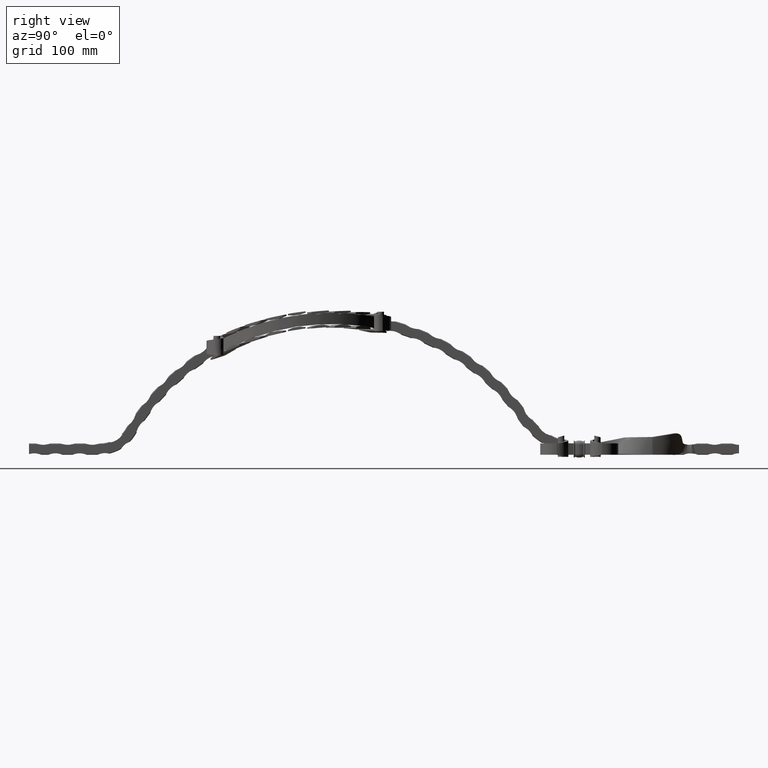
[diagram: clean part render]
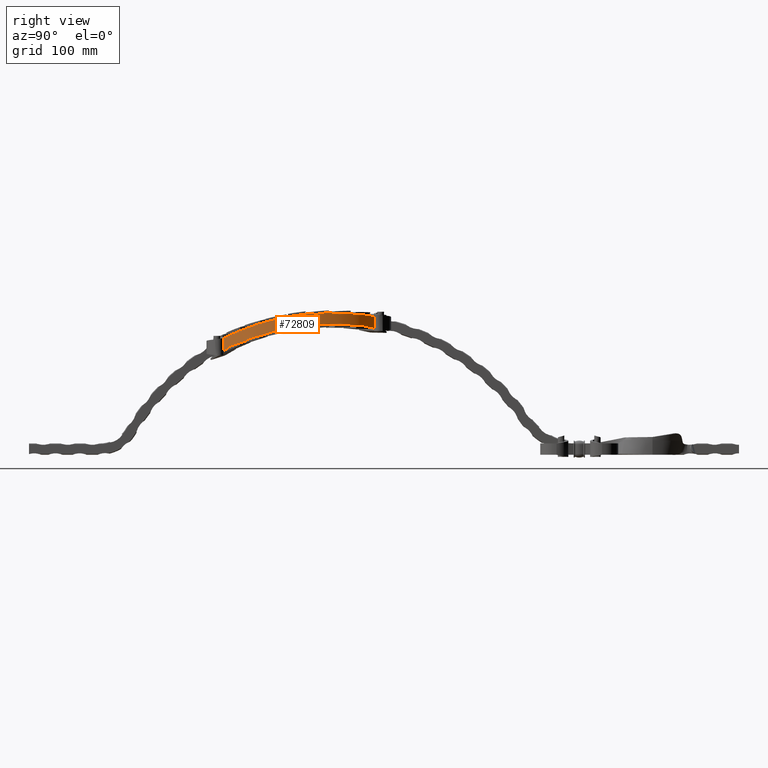
[diagram: same view with one face highlighted and labeled with its STEP entity id]
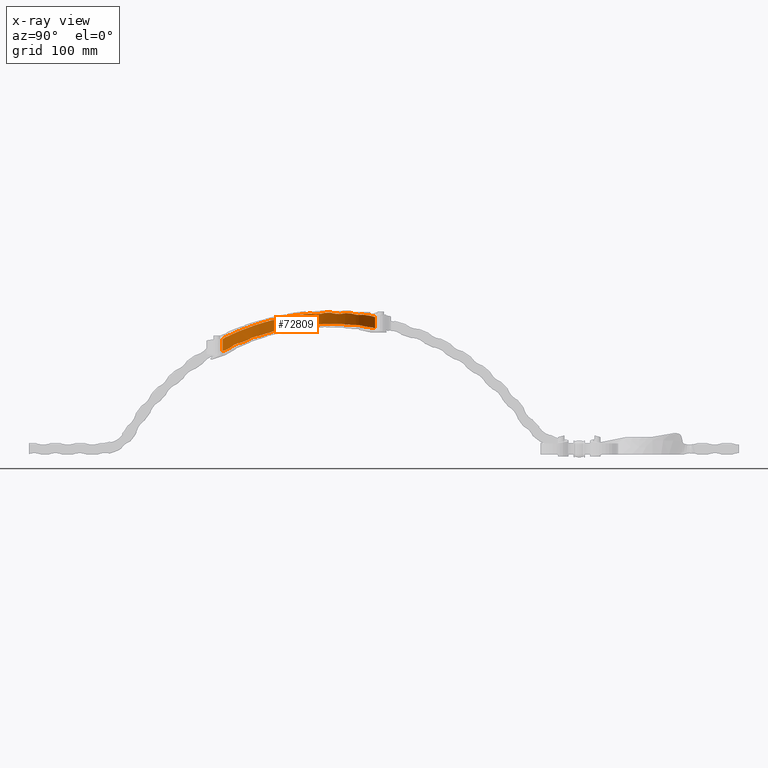
[diagram: x-ray of the same camera — body ghosted, the highlighted face saturated]
A machine part, right view. The second image highlights one B-rep face of the part: STEP entity #72809.
The next image is the same camera in x-ray: the body ghosted, the highlighted face saturated — about 0% of this face is hidden behind the body in this view.
In plain terms, the highlighted cylindrical surface (partial cylindrical patch) has radius 143.559 mm, axis along (0, 0, -1).
Its self-contained STEP definition (entity closure, byte-faithful):
#205 = ORIENTED_EDGE ( 'NONE', *, *, #28676, .F. ) ;
#645 = EDGE_CURVE ( 'NONE', #37190, #4270, #15752, .T. ) ;
#718 = CARTESIAN_POINT ( 'NONE',  ( 54.87554534618858071, 426.1626726420142859, 191.8353205002057678 ) ) ;
#1012 = CARTESIAN_POINT ( 'NONE',  ( 29.47882759754594417, 288.3869293681951831, 146.4516168255807429 ) ) ;
#1265 = CARTESIAN_POINT ( 'NONE',  ( 14.34791043303862246, 272.7304935389472575, 138.1322560593830815 ) ) ;
#1381 = CARTESIAN_POINT ( 'NONE',  ( 40.95277832755775904, 455.7149775396957807, 174.6880501319641041 ) ) ;
#1395 = ORIENTED_EDGE ( 'NONE', *, *, #47075, .F. ) ;
#1428 = CARTESIAN_POINT ( 'NONE',  ( 39.38513174063383104, 301.7707863752912090, 168.3018465052437023 ) ) ;
#1651 = CARTESIAN_POINT ( 'NONE',  ( 41.65759615597409748, 454.4972511603425573, 190.8416207604751946 ) ) ;
#1956 = CARTESIAN_POINT ( 'NONE',  ( 44.21395501683015539, 450.1319966746477235, 175.1369928298064451 ) ) ;
#2381 = ORIENTED_EDGE ( 'NONE', *, *, #25114, .F. ) ;
#2561 = CARTESIAN_POINT ( 'NONE',  ( 62.45237201290089502, 383.6976509628472058, 189.2958094194715954 ) ) ;
#3566 = CARTESIAN_POINT ( 'NONE',  ( 59.82683161147329542, 407.5900965703866063, 189.9602088058350091 ) ) ;
#3574 = CARTESIAN_POINT ( 'NONE',  ( 40.70859121640302192, 303.8892857871215369, 151.9018334575288236 ) ) ;
#3609 = ORIENTED_EDGE ( 'NONE', *, *, #37140, .F. ) ;
#3669 = CARTESIAN_POINT ( 'NONE',  ( 19.06667064921291299, 482.9255275037435240, 186.6954520056901856 ) ) ;
#4009 = CARTESIAN_POINT ( 'NONE',  ( 57.28981828392759468, 341.6751361321490776, 181.2441730957676498 ) ) ;
#4072 = CARTESIAN_POINT ( 'NONE',  ( 58.46361224457211847, 413.8517798382418391, 190.8896441585517891 ) ) ;
#4270 = VERTEX_POINT ( 'NONE', #7954 ) ;
#4627 = CARTESIAN_POINT ( 'NONE',  ( 50.08939826349006097, 438.3951654641858227, 176.0711084106085877 ) ) ;
#4713 = CARTESIAN_POINT ( 'NONE',  ( 56.60986378987634282, 339.3001817461642418, 164.0391281674017705 ) ) ;
#5352 = CARTESIAN_POINT ( 'NONE',  ( 32.59762242860480796, 467.7084633033514365, 174.0092458802796784 ) ) ;
#5401 = CARTESIAN_POINT ( 'NONE',  ( 53.71228226666797667, 429.4883906259616424, 190.7415643981258597 ) ) ;
#5702 = B_SPLINE_CURVE_WITH_KNOTS ( 'NONE', 3,
 ( #61126, #3669, #55312, #39139 ),
 .UNSPECIFIED., .F., .F.,
 ( 4, 4 ),
 ( 0.002169088220663665297, 0.01184605037619576758 ),
 .UNSPECIFIED. ) ;
#5845 = VERTEX_POINT ( 'NONE', #19855 ) ;
#5892 = CARTESIAN_POINT ( 'NONE',  ( 62.18734767816498987, 370.5305432202886777, 171.1286347313373426 ) ) ;
#6054 = CARTESIAN_POINT ( 'NONE',  ( 51.00116425371072637, 323.7033852352437293, 159.2497916353360097 ) ) ;
#6183 = EDGE_CURVE ( 'NONE', #25025, #13653, #35979, .T. ) ;
#6334 = B_SPLINE_CURVE_WITH_KNOTS ( 'NONE', 3,
 ( #71408, #14937, #60449, #60196, #54701, #48525 ),
 .UNSPECIFIED., .F., .F.,
 ( 4, 2, 4 ),
 ( 0.2297963460747055320, 0.2352694650614376715, 0.2407425840481698109 ),
 .UNSPECIFIED. ) ;
#6482 = CARTESIAN_POINT ( 'NONE',  ( 37.54212556312231897, 299.1113125400761419, 149.8861826913160087 ) ) ;
#6485 = VERTEX_POINT ( 'NONE', #72470 ) ;
#6615 = ORIENTED_EDGE ( 'NONE', *, *, #17534, .T. ) ;
#6805 = EDGE_CURVE ( 'NONE', #24343, #10796, #7936, .T. ) ;
#6886 = CARTESIAN_POINT ( 'NONE',  ( 37.06107768926196400, 298.3029745367472287, 166.9091673387005983 ) ) ;
#7007 = EDGE_CURVE ( 'NONE', #37190, #25721, #18610, .T. ) ;
#7132 = CARTESIAN_POINT ( 'NONE',  ( 18.05829399836335725, 276.1492195848916253, 156.9219191592546565 ) ) ;
#7210 = DIRECTION ( 'NONE',  ( 0.000000000000000000, 0.000000000000000000, 1.000000000000000000 ) ) ;
#7402 = CARTESIAN_POINT ( 'NONE',  ( 54.88104647583427464, 426.1464703266730680, 191.6707689010672198 ) ) ;
#7673 = CARTESIAN_POINT ( 'NONE',  ( 51.00116425371072637, 323.7033852352437293, 159.2497916353360097 ) ) ;
#7713 = CARTESIAN_POINT ( 'NONE',  ( 59.02621204198550231, 411.3898497679593902, 175.6484352663472350 ) ) ;
#7936 = B_SPLINE_CURVE_WITH_KNOTS ( 'NONE', 3,
 ( #25826, #42992, #26839, #37493, #65626, #72114, #32551, #37758 ),
 .UNSPECIFIED., .F., .F.,
 ( 4, 2, 2, 4 ),
 ( 0.1602699814525353483, 0.1650662447777556940, 0.1698625081029760397, 0.1794550347534169255 ),
 .UNSPECIFIED. ) ;
#7954 = CARTESIAN_POINT ( 'NONE',  ( 18.05829399836335725, 276.1492195848916253, 156.9219191592546565 ) ) ;
#8235 = DIRECTION ( 'NONE',  ( 0.000000000000000000, 0.000000000000000000, -1.000000000000000000 ) ) ;
#8279 = CARTESIAN_POINT ( 'NONE',  ( 46.50744329074341010, 445.8679610375921811, 175.4213705812136652 ) ) ;
#8328 = ORIENTED_EDGE ( 'NONE', *, *, #11582, .F. ) ;
#8444 = VERTEX_POINT ( 'NONE', #55724 ) ;
#8521 = VERTEX_POINT ( 'NONE', #12445 ) ;
#8903 = B_SPLINE_CURVE_WITH_KNOTS ( 'NONE', 3,
 ( #49603, #55299, #21222, #21484, #50081, #61030, #66749, #32681 ),
 .UNSPECIFIED., .F., .F.,
 ( 4, 2, 2, 4 ),
 ( 0.1303568117738035659, 0.1353611937704127799, 0.1403655757670220217, 0.1503743397602404497 ),
 .UNSPECIFIED. ) ;
#9193 = CARTESIAN_POINT ( 'NONE',  ( 62.46523630083655121, 383.1591301786469330, 173.0886959346169931 ) ) ;
#9195 = CARTESIAN_POINT ( 'NONE',  ( 59.40298302251355267, 350.3365046323355045, 182.8325951925343986 ) ) ;
#9746 = CARTESIAN_POINT ( 'NONE',  ( 30.62214433222455412, 470.2027403279753912, 189.1726477880944799 ) ) ;
#9771 = CARTESIAN_POINT ( 'NONE',  ( 62.34788906482121718, 387.7528021373078104, 189.8106166385742881 ) ) ;
#10293 = CARTESIAN_POINT ( 'NONE',  ( 47.96586044313103514, 442.9640980102969365, 175.7929633856486760 ) ) ;
#10324 = EDGE_LOOP ( 'NONE', ( #13165, #36886, #43380, #49163, #61672, #23407, #6615, #205, #59044, #27516, #34184, #28157, #14956, #10484, #17453, #29588, #2381, #56792, #48657, #45394, #63754, #1395, #3609, #67064, #38330, #14015, #61750, #46507, #52796, #53106, #41343, #25090, #20912, #68924, #8328, #22379 ) ) ;
#10441 = CARTESIAN_POINT ( 'NONE',  ( 16.88388185722090284, 275.0283321948774642, 156.0803188687901581 ) ) ;
#10484 = ORIENTED_EDGE ( 'NONE', *, *, #36917, .T. ) ;
#10539 = CARTESIAN_POINT ( 'NONE',  ( 15.69159786428269499, 273.9255919046373151, 138.5951246219623840 ) ) ;
#10796 = VERTEX_POINT ( 'NONE', #46715 ) ;
#11019 = EDGE_CURVE ( 'NONE', #6485, #25721, #60347, .T. ) ;
#11247 = CARTESIAN_POINT ( 'NONE',  ( 47.59607216431081156, 316.3048589952529142, 173.6361974993323258 ) ) ;
#11250 = CARTESIAN_POINT ( 'NONE',  ( 34.73661609628569380, 464.8890494080042117, 174.3618560449460801 ) ) ;
#11292 = CARTESIAN_POINT ( 'NONE',  ( 62.49964343868131067, 378.8820028189642812, 172.9470935432360079 ) ) ;
#11521 = B_SPLINE_CURVE_WITH_KNOTS ( 'NONE', 3,
 ( #15894, #61389, #73100, #55669, #27335, #67124 ),
 .UNSPECIFIED., .F., .F.,
 ( 4, 2, 4 ),
 ( 0.06430661875022439244, 0.07687153130712975901, 0.08943644386403512558 ),
 .UNSPECIFIED. ) ;
#11582 = EDGE_CURVE ( 'NONE', #32193, #23864, #71814, .T. ) ;
#11661 = B_SPLINE_CURVE_WITH_KNOTS ( 'NONE', 3,
 ( #11247, #56993, #22900, #39082, #33372, #33613 ),
 .UNSPECIFIED., .F., .F.,
 ( 4, 2, 4 ),
 ( 0.009818881736506706107, 0.01423579173994967209, 0.01865270174339263634 ),
 .UNSPECIFIED. ) ;
#12095 = CARTESIAN_POINT ( 'NONE',  ( 20.31827285201796229, 481.6970778917969369, 171.2617865729183109 ) ) ;
#12445 = CARTESIAN_POINT ( 'NONE',  ( 57.57070921096910610, 417.2960347366930591, 191.8760587568100675 ) ) ;
#12559 = DIRECTION ( 'NONE',  ( -0.000000000000000000, -0.000000000000000000, -1.000000000000000000 ) ) ;
#12567 = CARTESIAN_POINT ( 'NONE',  ( 33.33735769546461114, 293.2413064832605869, 164.7827508771324005 ) ) ;
#12895 = CARTESIAN_POINT ( 'NONE',  ( 59.63926292887261837, 408.5258566783885499, 175.5618236116010848 ) ) ;
#13098 = CARTESIAN_POINT ( 'NONE',  ( 44.87515652727775972, 311.0353332048717334, 155.4085991743909005 ) ) ;
#13165 = ORIENTED_EDGE ( 'NONE', *, *, #32466, .F. ) ;
#13334 = CARTESIAN_POINT ( 'NONE',  ( 47.69347756386604686, 316.4981435052954453, 157.7636815987970351 ) ) ;
#13452 = CARTESIAN_POINT ( 'NONE',  ( 62.49633357706491665, 378.5324169334996327, 188.0957345827903282 ) ) ;
#13653 = VERTEX_POINT ( 'NONE', #20941 ) ;
#13953 = CARTESIAN_POINT ( 'NONE',  ( 14.34791043303860647, 487.2695064610527425, 170.3703116351568383 ) ) ;
#14015 = ORIENTED_EDGE ( 'NONE', *, *, #23094, .F. ) ;
#14135 = CARTESIAN_POINT ( 'NONE',  ( 41.65759615597409748, 454.4972511603425573, 190.8416207604751946 ) ) ;
#14430 = CARTESIAN_POINT ( 'NONE',  ( 61.62373968079749886, 395.8373921338410355, 190.6156773046816113 ) ) ;
#14873 = CARTESIAN_POINT ( 'NONE',  ( 59.83874039908802445, 352.4647336632399970, 183.5002349088146332 ) ) ;
#14937 = CARTESIAN_POINT ( 'NONE',  ( 24.40410566277869719, 282.5845831677842170, 142.2581007955531902 ) ) ;
#14956 = ORIENTED_EDGE ( 'NONE', *, *, #68536, .F. ) ;
#15129 = CARTESIAN_POINT ( 'NONE',  ( 59.91859427334846799, 407.1017801941845846, 175.4198779886886825 ) ) ;
#15173 = EDGE_CURVE ( 'NONE', #66085, #67389, #34677, .T. ) ;
#15198 = CARTESIAN_POINT ( 'NONE',  ( 34.59285521565004728, 465.0677543228616173, 188.7376087734243981 ) ) ;
#15384 = CARTESIAN_POINT ( 'NONE',  ( 58.43556356712592503, 346.0088390348406620, 181.7533518436698614 ) ) ;
#15596 = B_SPLINE_CURVE_WITH_KNOTS ( 'NONE', 3,
 ( #70661, #24613, #29842, #13452, #69930, #70173, #47303, #2561 ),
 .UNSPECIFIED., .F., .F.,
 ( 4, 2, 2, 4 ),
 ( 0.006893394492022431215, 0.01319764996676441732, 0.01634977770413532927, 0.01950190544150624122 ),
 .UNSPECIFIED. ) ;
#15697 = CARTESIAN_POINT ( 'NONE',  ( 15.59457958163620361, 486.1475864854437532, 170.4501924052195818 ) ) ;
#15707 = CARTESIAN_POINT ( 'NONE',  ( 54.96462544228585045, 334.0174344528228971, 162.5250055812642813 ) ) ;
#15752 = B_SPLINE_CURVE_WITH_KNOTS ( 'NONE', 3,
 ( #50196, #16621, #10441, #44761 ),
 .UNSPECIFIED., .F., .F.,
 ( 4, 4 ),
 ( 1.214306433183764812E-17, 0.005483994406393619993 ),
 .UNSPECIFIED. ) ;
#15851 = CARTESIAN_POINT ( 'NONE',  ( 54.87004131991761113, 426.1788739735829381, 191.9998747198900162 ) ) ;
#15894 = CARTESIAN_POINT ( 'NONE',  ( 51.40917903308823611, 435.3297119917191367, 175.8787205969119043 ) ) ;
#15980 = CARTESIAN_POINT ( 'NONE',  ( 50.76166587379518802, 436.8613156676528320, 176.0179375212815103 ) ) ;
#16554 = CARTESIAN_POINT ( 'NONE',  ( 59.31540602297936715, 349.9122618024645703, 166.9763740988582015 ) ) ;
#16621 = CARTESIAN_POINT ( 'NONE',  ( 15.64924556359871133, 273.8879230508892988, 155.3418064462438792 ) ) ;
#16757 = CARTESIAN_POINT ( 'NONE',  ( 51.76386311095444626, 434.5027665396510770, 190.1856157129458040 ) ) ;
#16862 = CYLINDRICAL_SURFACE ( 'NONE', #52028, 143.5594059405938481 ) ;
#17000 = CARTESIAN_POINT ( 'NONE',  ( 62.32064982348229165, 372.5470368810476316, 171.8188139479954941 ) ) ;
#17278 = CARTESIAN_POINT ( 'NONE',  ( 46.45890614627136728, 445.9422710901972664, 191.4413612988598743 ) ) ;
#17453 = ORIENTED_EDGE ( 'NONE', *, *, #26704, .F. ) ;
#17501 = CARTESIAN_POINT ( 'NONE',  ( 48.06098984276402319, 442.7733859201455289, 190.6979960321487226 ) ) ;
#17534 = EDGE_CURVE ( 'NONE', #73494, #37655, #73107, .T. ) ;
#17719 = B_SPLINE_CURVE_WITH_KNOTS ( 'NONE', 3,
 ( #50949, #51930, #56687, #29286 ),
 .UNSPECIFIED., .F., .F.,
 ( 4, 4 ),
 ( 0.1296726685259065870, 0.1467279451520990541 ),
 .UNSPECIFIED. ) ;
#17794 = CARTESIAN_POINT ( 'NONE',  ( 29.00760398250084293, 472.1659175650391944, 172.7577334862172904 ) ) ;
#17862 = EDGE_CURVE ( 'NONE', #36934, #40876, #26858, .T. ) ;
#17984 = CARTESIAN_POINT ( 'NONE',  ( 29.00760398250084293, 472.1659175650391944, 172.7577334862172904 ) ) ;
#18092 = CARTESIAN_POINT ( 'NONE',  ( 35.57248972937951237, 296.2790516487965533, 149.5307504969440799 ) ) ;
#18610 = LINE ( 'NONE', #51351, #47134 ) ;
#18742 = CARTESIAN_POINT ( 'NONE',  ( 32.05576767998080356, 291.5769588164343418, 164.0674317124399693 ) ) ;
#18826 = B_SPLINE_CURVE_WITH_KNOTS ( 'NONE', 3,
 ( #7713, #64601, #30004, #12895, #46743, #24540 ),
 .UNSPECIFIED., .F., .F.,
 ( 4, 2, 4 ),
 ( 0.01005810265778764138, 0.01223143658782506818, 0.01440477051786249497 ),
 .UNSPECIFIED. ) ;
#19005 = CARTESIAN_POINT ( 'NONE',  ( 27.67169014277537897, 473.8557479493460960, 188.6983198376819075 ) ) ;
#19031 = CARTESIAN_POINT ( 'NONE',  ( 43.62758517053000418, 308.8490528406631483, 153.8686827294681905 ) ) ;
#19276 = CARTESIAN_POINT ( 'NONE',  ( 48.93322435674932080, 319.0759564092657001, 158.5089468050307175 ) ) ;
#19525 = CARTESIAN_POINT ( 'NONE',  ( 49.84142774482364757, 321.0393799669326995, 158.9375204718081704 ) ) ;
#19614 = CARTESIAN_POINT ( 'NONE',  ( -81.05940594059381965, 380.0000000000000000, 192.0000000000000000 ) ) ;
#19799 = CARTESIAN_POINT ( 'NONE',  ( 62.22937744039836616, 371.1893478555043089, 187.4707337984536935 ) ) ;
#19855 = CARTESIAN_POINT ( 'NONE',  ( 14.34791043303862423, 487.2695064610527425, 185.8250401428522878 ) ) ;
#20027 = VERTEX_POINT ( 'NONE', #57790 ) ;
#20154 = CARTESIAN_POINT ( 'NONE',  ( 59.02621204198550231, 411.3898497679593902, 175.6484352663472350 ) ) ;
#20298 = VERTEX_POINT ( 'NONE', #57224 ) ;
#20638 = CARTESIAN_POINT ( 'NONE',  ( 60.64458500710597377, 403.0786938488144528, 189.8113021230724655 ) ) ;
#20688 = EDGE_CURVE ( 'NONE', #73494, #33432, #50924, .T. ) ;
#20750 = CARTESIAN_POINT ( 'NONE',  ( 54.87004131991761113, 426.1788739735829381, 191.9998747198900162 ) ) ;
#20756 = CARTESIAN_POINT ( 'NONE',  ( 37.42201921055066549, 461.0645109044022547, 174.1457439624590506 ) ) ;
#20912 = ORIENTED_EDGE ( 'NONE', *, *, #17862, .F. ) ;
#20941 = CARTESIAN_POINT ( 'NONE',  ( 43.62758517053000418, 308.8490528406631483, 153.8686827294681905 ) ) ;
#21166 = CARTESIAN_POINT ( 'NONE',  ( 56.60986378987634282, 339.3001817461642418, 164.0391281674017705 ) ) ;
#21222 = CARTESIAN_POINT ( 'NONE',  ( 61.93911483888010139, 367.2138769244062928, 170.5332076142667859 ) ) ;
#21382 = CARTESIAN_POINT ( 'NONE',  ( 54.88654470867890467, 426.1302670280772986, 191.5062199277342074 ) ) ;
#21484 = CARTESIAN_POINT ( 'NONE',  ( 61.60500424326244939, 363.9087615357215668, 169.8998405160924108 ) ) ;
#21538 = CARTESIAN_POINT ( 'NONE',  ( 57.66203905747453717, 342.9905860556496009, 165.5397031563014991 ) ) ;
#22379 = ORIENTED_EDGE ( 'NONE', *, *, #33131, .F. ) ;
#22452 = CARTESIAN_POINT ( 'NONE',  ( 50.70273394320315674, 436.9987619098766345, 190.1755220042986991 ) ) ;
#22900 = CARTESIAN_POINT ( 'NONE',  ( 48.85773271750728242, 318.9026519881106196, 174.2670032064703207 ) ) ;
#23094 = EDGE_CURVE ( 'NONE', #38906, #25025, #31255, .T. ) ;
#23155 = CARTESIAN_POINT ( 'NONE',  ( 37.42201921055066549, 461.0645109044022547, 174.1457439624590506 ) ) ;
#23407 = ORIENTED_EDGE ( 'NONE', *, *, #20688, .F. ) ;
#23529 =( BOUNDED_CURVE ( )  B_SPLINE_CURVE ( 3, ( #34701, #718, #7402, #36155 ),
 .UNSPECIFIED., .F., .F. ) 
 B_SPLINE_CURVE_WITH_KNOTS ( ( 4, 4 ),
 ( 4.801140535740446857, 4.801498103548063945 ),
 .UNSPECIFIED. ) 
 CURVE ( )  GEOMETRIC_REPRESENTATION_ITEM ( )  RATIONAL_B_SPLINE_CURVE ( ( 1.000000000000000000, 0.9999999893454385447, 0.9999999893454385447, 1.000000000000000000 ) ) 
 REPRESENTATION_ITEM ( '' )  );
#23544 = CARTESIAN_POINT ( 'NONE',  ( 36.56557697817488162, 297.6794663648006463, 149.7679574166719760 ) ) ;
#23705 = CARTESIAN_POINT ( 'NONE',  ( 24.78825077021826218, 477.0360911101547003, 172.0339954060800096 ) ) ;
#23768 = CARTESIAN_POINT ( 'NONE',  ( 26.52050346601048503, 284.9321463166491526, 143.9193943335649806 ) ) ;
#23864 = VERTEX_POINT ( 'NONE', #55916 ) ;
#24154 = EDGE_CURVE ( 'NONE', #46863, #5845, #50233, .T. ) ;
#24343 = VERTEX_POINT ( 'NONE', #55362 ) ;
#24408 = CARTESIAN_POINT ( 'NONE',  ( 15.59457958163620361, 486.1475864854437532, 170.4501924052195818 ) ) ;
#24433 = CARTESIAN_POINT ( 'NONE',  ( 43.33019978744632539, 451.6883181753399867, 191.0655146353440159 ) ) ;
#24540 = CARTESIAN_POINT ( 'NONE',  ( 59.91859427334846799, 407.1017801941845846, 175.4198779886886825 ) ) ;
#24613 = CARTESIAN_POINT ( 'NONE',  ( 62.35835267764853995, 373.2868889374546484, 187.4822822513548317 ) ) ;
#24880 = CARTESIAN_POINT ( 'NONE',  ( 43.41362908223380401, 451.5428092903025572, 175.0303532673120515 ) ) ;
#24994 = CARTESIAN_POINT ( 'NONE',  ( 14.34791043303862068, 272.7304935389472575, 154.7116791928000907 ) ) ;
#25025 = VERTEX_POINT ( 'NONE', #56738 ) ;
#25090 = ORIENTED_EDGE ( 'NONE', *, *, #60460, .F. ) ;
#25114 = EDGE_CURVE ( 'NONE', #55614, #10796, #11661, .T. ) ;
#25614 = CARTESIAN_POINT ( 'NONE',  ( 60.22618280294690862, 354.5503350236729716, 184.2976740468933201 ) ) ;
#25721 = VERTEX_POINT ( 'NONE', #1265 ) ;
#25826 = CARTESIAN_POINT ( 'NONE',  ( 57.28981828392759468, 341.6751361321490776, 181.2441730957676498 ) ) ;
#26113 = CARTESIAN_POINT ( 'NONE',  ( 61.42246861514157530, 397.6506950139909691, 190.2743512189506987 ) ) ;
#26309 = CARTESIAN_POINT ( 'NONE',  ( 62.12150756768604509, 391.1639372718573782, 174.0933043746703675 ) ) ;
#26370 = CARTESIAN_POINT ( 'NONE',  ( 59.27063896610513183, 410.2923755165073203, 190.2580365120693102 ) ) ;
#26492 = CARTESIAN_POINT ( 'NONE',  ( 62.45237201290089502, 383.6976509628472058, 189.2958094194715954 ) ) ;
#26683 = CARTESIAN_POINT ( 'NONE',  ( 51.40917903308823611, 435.3297119917191367, 175.8787205969119043 ) ) ;
#26704 = EDGE_CURVE ( 'NONE', #24343, #48763, #33718, .T. ) ;
#26823 = CARTESIAN_POINT ( 'NONE',  ( 60.30021660343268053, 405.1166577207982300, 175.3008570081075561 ) ) ;
#26839 = CARTESIAN_POINT ( 'NONE',  ( 56.43256934600512409, 338.6756900887263555, 180.4598196511498713 ) ) ;
#26858 = B_SPLINE_CURVE_WITH_KNOTS ( 'NONE', 3,
 ( #72949, #10293, #61002, #37873, #4627, #15980, #44362, #26683 ),
 .UNSPECIFIED., .F., .F.,
 ( 4, 2, 2, 4 ),
 ( 0.006688337887424819321, 0.01168843679203012201, 0.01418848624433277292, 0.01668853569663542383 ),
 .UNSPECIFIED. ) ;
#26905 = CARTESIAN_POINT ( 'NONE',  ( 62.45237201290089502, 383.6976509628472058, 189.2958094194715954 ) ) ;
#27010 = VERTEX_POINT ( 'NONE', #31721 ) ;
#27335 = CARTESIAN_POINT ( 'NONE',  ( 58.10340953597028602, 415.5081032889738708, 175.8405505222938245 ) ) ;
#27516 = ORIENTED_EDGE ( 'NONE', *, *, #70487, .T. ) ;
#27675 = B_SPLINE_CURVE_WITH_KNOTS ( 'NONE', 3,
 ( #49526, #43809, #37815, #43049, #15198, #71650, #54445, #9746 ),
 .UNSPECIFIED., .F., .F.,
 ( 4, 2, 2, 4 ),
 ( 6.938893903907227607E-18, 0.009662400665569642610, 0.01449360099835440320, 0.01932480133113916379 ),
 .UNSPECIFIED. ) ;
#28143 = CARTESIAN_POINT ( 'NONE',  ( 36.10638133040166764, 462.9874072407127983, 174.3650815394068445 ) ) ;
#28157 = ORIENTED_EDGE ( 'NONE', *, *, #49789, .T. ) ;
#28190 = CARTESIAN_POINT ( 'NONE',  ( 50.34023182524559559, 437.8296170498388165, 190.1991272164569011 ) ) ;
#28676 = EDGE_CURVE ( 'NONE', #39620, #37655, #49916, .T. ) ;
#28691 = CARTESIAN_POINT ( 'NONE',  ( 49.21640939510479029, 440.3185946530068122, 190.3804950708166643 ) ) ;
#29108 = CARTESIAN_POINT ( 'NONE',  ( 31.88046208560841421, 468.6296367411977712, 173.8347983561004924 ) ) ;
#29265 = CARTESIAN_POINT ( 'NONE',  ( 34.06019835123863970, 294.2241114688796415, 148.9961483077809135 ) ) ;
#29286 = CARTESIAN_POINT ( 'NONE',  ( 60.22618280294690862, 354.5503350236729716, 184.2976740468933201 ) ) ;
#29385 = EDGE_CURVE ( 'NONE', #13653, #60577, #56607, .T. ) ;
#29588 = ORIENTED_EDGE ( 'NONE', *, *, #6805, .T. ) ;
#29673 = CARTESIAN_POINT ( 'NONE',  ( 41.65759615597409748, 454.4972511603425573, 190.8416207604751946 ) ) ;
#29676 = CARTESIAN_POINT ( 'NONE',  ( 23.95706808378280783, 282.0295059090759651, 159.7736643231009168 ) ) ;
#29842 = CARTESIAN_POINT ( 'NONE',  ( 62.44114515679870436, 375.3848806329746139, 187.6381910154496495 ) ) ;
#30004 = CARTESIAN_POINT ( 'NONE',  ( 59.34074878575106027, 409.9605819985886228, 175.6384090609617772 ) ) ;
#30336 = EDGE_CURVE ( 'NONE', #20027, #8444, #47613, .T. ) ;
#30388 = CARTESIAN_POINT ( 'NONE',  ( 46.45890614627136728, 445.9422710901972664, 191.4413612988598743 ) ) ;
#30710 = CARTESIAN_POINT ( 'NONE',  ( 48.00482505966658664, 317.1331531238609500, 157.9706804530582644 ) ) ;
#31121 = VERTEX_POINT ( 'NONE', #20750 ) ;
#31255 = B_SPLINE_CURVE_WITH_KNOTS ( 'NONE', 3,
 ( #21166, #38335, #15707, #73164, #45301, #6054 ),
 .UNSPECIFIED., .F., .F.,
 ( 4, 2, 4 ),
 ( 0.1627013867355368293, 0.1712849266523855385, 0.1798684665692342755 ),
 .UNSPECIFIED. ) ;
#31620 = VERTEX_POINT ( 'NONE', #20154 ) ;
#31721 = CARTESIAN_POINT ( 'NONE',  ( 59.52365011143791662, 350.9189514444971678, 167.0576045229779822 ) ) ;
#31833 = CARTESIAN_POINT ( 'NONE',  ( 59.64737240359760051, 408.4912626246683089, 190.0403525608301152 ) ) ;
#32085 = CARTESIAN_POINT ( 'NONE',  ( 58.02943938273350710, 415.5909254138343840, 191.3283879010526221 ) ) ;
#32193 = VERTEX_POINT ( 'NONE', #17984 ) ;
#32427 = B_SPLINE_CURVE_WITH_KNOTS ( 'NONE', 3,
 ( #57804, #51846, #12095, #23705, #63536, #17794 ),
 .UNSPECIFIED., .F., .F.,
 ( 4, 2, 4 ),
 ( 0.001669392018709382579, 0.01138989547989981838, 0.02111039894109025331 ),
 .UNSPECIFIED. ) ;
#32466 = EDGE_CURVE ( 'NONE', #46863, #43349, #70006, .T. ) ;
#32551 = CARTESIAN_POINT ( 'NONE',  ( 52.34881859435813567, 326.8863089202431524, 177.0857543529626810 ) ) ;
#32573 = EDGE_CURVE ( 'NONE', #23864, #36934, #57582, .T. ) ;
#32681 = CARTESIAN_POINT ( 'NONE',  ( 59.52365011143791662, 350.9189514444971678, 167.0576045229779822 ) ) ;
#33131 = EDGE_CURVE ( 'NONE', #43349, #32193, #32427, .T. ) ;
#33238 = EDGE_CURVE ( 'NONE', #55614, #4270, #44875, .T. ) ;
#33261 = CARTESIAN_POINT ( 'NONE',  ( 60.03952811457124739, 353.5141085128944383, 183.8791140369678772 ) ) ;
#33372 = CARTESIAN_POINT ( 'NONE',  ( 50.61321116125144215, 322.7855175565780428, 175.6219668716505566 ) ) ;
#33432 = VERTEX_POINT ( 'NONE', #53361 ) ;
#33613 = CARTESIAN_POINT ( 'NONE',  ( 51.14650075962612874, 324.0455429157877916, 176.1871994632143981 ) ) ;
#33718 = B_SPLINE_CURVE_WITH_KNOTS ( 'NONE', 3,
 ( #4009, #43750, #15384, #72606, #43234, #9195, #48961, #14873, #33261, #67834 ),
 .UNSPECIFIED., .F., .F.,
 ( 4, 2, 2, 2, 4 ),
 ( 0.007172250002802671096, 0.01393493339057642888, 0.01562560423751987657, 0.01731627508446332772, 0.02069761677835025085 ),
 .UNSPECIFIED. ) ;
#33949 = CARTESIAN_POINT ( 'NONE',  ( 58.39613230429192470, 345.9160482826122234, 166.2904860508635920 ) ) ;
#34184 = ORIENTED_EDGE ( 'NONE', *, *, #47083, .F. ) ;
#34371 = B_SPLINE_CURVE_WITH_KNOTS ( 'NONE', 3,
 ( #14430, #26113, #43296, #20638, #49024, #3566, #31833, #26370, #66182, #4072, #32085, #65427 ),
 .UNSPECIFIED., .F., .F.,
 ( 4, 2, 2, 2, 2, 4 ),
 ( 0.0001964817850556035376, 0.005690041107163959846, 0.01118360042927231575, 0.01393038009032649197, 0.01667715975138066992, 0.02217071907348903970 ),
 .UNSPECIFIED. ) ;
#34394 = CARTESIAN_POINT ( 'NONE',  ( 62.48712159583790537, 377.8031261003698091, 172.8277542795283921 ) ) ;
#34403 = CARTESIAN_POINT ( 'NONE',  ( 39.22829525345395041, 458.4245127425440955, 174.4295705315613247 ) ) ;
#34677 = B_SPLINE_CURVE_WITH_KNOTS ( 'NONE', 3,
 ( #64779, #70026, #19005, #59285 ),
 .UNSPECIFIED., .F., .F.,
 ( 4, 4 ),
 ( 0.009491882237558596155, 0.02365063542369113050 ),
 .UNSPECIFIED. ) ;
#34701 = CARTESIAN_POINT ( 'NONE',  ( 54.87004131991761113, 426.1788739735829381, 191.9998747198900162 ) ) ;
#34992 = CARTESIAN_POINT ( 'NONE',  ( 30.48594597557531927, 289.6139704943900597, 147.1525778028193088 ) ) ;
#35044 = EDGE_CURVE ( 'NONE', #27010, #38906, #38638, .T. ) ;
#35979 = B_SPLINE_CURVE_WITH_KNOTS ( 'NONE', 3,
 ( #7673, #47897, #19525, #19276, #69820, #30710, #13334, #59318, #13098, #19031 ),
 .UNSPECIFIED., .F., .F.,
 ( 4, 2, 2, 2, 4 ),
 ( 0.005789832868051655694, 0.01017208640564903205, 0.01236321317444764173, 0.01455433994324625141, 0.02331884701844035707 ),
 .UNSPECIFIED. ) ;
#36012 = CARTESIAN_POINT ( 'NONE',  ( 41.66093532112752484, 454.4917506575623065, 190.8005007725683413 ) ) ;
#36155 = CARTESIAN_POINT ( 'NONE',  ( 54.88654470867890467, 426.1302670280772986, 191.5062199277342074 ) ) ;
#36544 = CARTESIAN_POINT ( 'NONE',  ( 47.22921506579140072, 444.4308369827388674, 175.5012492006217144 ) ) ;
#36886 = ORIENTED_EDGE ( 'NONE', *, *, #24154, .T. ) ;
#36917 = EDGE_CURVE ( 'NONE', #72786, #48763, #17719, .T. ) ;
#36934 = VERTEX_POINT ( 'NONE', #64115 ) ;
#37134 = CARTESIAN_POINT ( 'NONE',  ( 56.60986378987634282, 339.3001817461642418, 164.0391281674017705 ) ) ;
#37140 = EDGE_CURVE ( 'NONE', #60577, #20298, #40103, .T. ) ;
#37190 = VERTEX_POINT ( 'NONE', #24994 ) ;
#37493 = CARTESIAN_POINT ( 'NONE',  ( 55.50106768655993505, 335.6944822783756877, 179.6475106493074634 ) ) ;
#37524 = VERTEX_POINT ( 'NONE', #55818 ) ;
#37655 = VERTEX_POINT ( 'NONE', #17278 ) ;
#37758 = CARTESIAN_POINT ( 'NONE',  ( 51.14650075962612874, 324.0455429157877916, 176.1871994632143981 ) ) ;
#37815 = CARTESIAN_POINT ( 'NONE',  ( 38.31434567210396835, 459.8094420985748911, 189.1732390801900010 ) ) ;
#37822 = CARTESIAN_POINT ( 'NONE',  ( 38.61819261002403181, 300.6890758067438583, 150.5615887958604731 ) ) ;
#37873 = CARTESIAN_POINT ( 'NONE',  ( 49.74431616371891351, 439.1641914381324909, 176.0688032182636960 ) ) ;
#38318 = CARTESIAN_POINT ( 'NONE',  ( 37.54212556312231897, 299.1113125400761419, 149.8861826913160087 ) ) ;
#38330 = ORIENTED_EDGE ( 'NONE', *, *, #6183, .F. ) ;
#38335 = CARTESIAN_POINT ( 'NONE',  ( 55.82479092125031883, 336.6446315951812949, 163.2963950258318562 ) ) ;
#38457 = CARTESIAN_POINT ( 'NONE',  ( 58.27513516011939743, 345.4248535495166266, 166.1738874138801236 ) ) ;
#38638 = B_SPLINE_CURVE_WITH_KNOTS ( 'NONE', 3,
 ( #62307, #16554, #39421, #56589, #68035, #33949, #38457, #21538, #61317, #4713 ),
 .UNSPECIFIED., .F., .F.,
 ( 4, 2, 2, 2, 4 ),
 ( 0.008047922064957441224, 0.01113654898308301389, 0.01268086244214588001, 0.01422517590120874614, 0.02040242973746049515 ),
 .UNSPECIFIED. ) ;
#38906 = VERTEX_POINT ( 'NONE', #37134 ) ;
#39082 = CARTESIAN_POINT ( 'NONE',  ( 50.04927990113471736, 321.5033219058627196, 175.1235443034672414 ) ) ;
#39139 = CARTESIAN_POINT ( 'NONE',  ( 14.34791043303862423, 487.2695064610527425, 185.8250401428522878 ) ) ;
#39421 = CARTESIAN_POINT ( 'NONE',  ( 59.09652690295037303, 348.9086643509939449, 166.8518959299657922 ) ) ;
#39620 = VERTEX_POINT ( 'NONE', #21382 ) ;
#39631 = CARTESIAN_POINT ( 'NONE',  ( 46.45890614627136728, 445.9422710901972664, 191.4413612988598743 ) ) ;
#39876 = EDGE_CURVE ( 'NONE', #31121, #39620, #23529, .T. ) ;
#40103 = B_SPLINE_CURVE_WITH_KNOTS ( 'NONE', 3,
 ( #6482, #23544, #18092, #29265, #57880, #69112, #46480, #34992, #1012, #40744, #23768, #63849 ),
 .UNSPECIFIED., .F., .F.,
 ( 4, 2, 2, 2, 2, 4 ),
 ( 0.003629532070206011995, 0.008828821656217523614, 0.01142846644922328007, 0.01402811124222903653, 0.01922740082824058588, 0.02442669041425214044 ),
 .UNSPECIFIED. ) ;
#40382 = CARTESIAN_POINT ( 'NONE',  ( 54.88654470867890467, 426.1302670280772986, 191.5062199277342074 ) ) ;
#40733 = CARTESIAN_POINT ( 'NONE',  ( 21.23957764805602721, 480.7185235731013222, 187.6395625481702893 ) ) ;
#40744 = CARTESIAN_POINT ( 'NONE',  ( 27.49612692867200536, 286.0460109000680973, 144.8350084451906525 ) ) ;
#40857 = CARTESIAN_POINT ( 'NONE',  ( 62.50034132862109004, 381.0244707790374150, 173.0886636187161116 ) ) ;
#40876 = VERTEX_POINT ( 'NONE', #68667 ) ;
#41164 = CARTESIAN_POINT ( 'NONE',  ( 21.07369843410844013, 279.0271946069580622, 158.3424461233310865 ) ) ;
#41343 = ORIENTED_EDGE ( 'NONE', *, *, #63507, .F. ) ;
#41402 = CARTESIAN_POINT ( 'NONE',  ( 47.59607216431081156, 316.3048589952529142, 173.6361974993323258 ) ) ;
#41599 = CARTESIAN_POINT ( 'NONE',  ( 15.18202442280350439, 486.5232436404409100, 170.4364023168641609 ) ) ;
#42992 = CARTESIAN_POINT ( 'NONE',  ( 56.87352892761389000, 340.1723699462724539, 180.8567040099011649 ) ) ;
#43049 = CARTESIAN_POINT ( 'NONE',  ( 35.54489187343846623, 463.7575364510714166, 188.7826039525404269 ) ) ;
#43233 = CARTESIAN_POINT ( 'NONE',  ( 61.48606592133545945, 397.1498571215902871, 174.6752664520237772 ) ) ;
#43234 = CARTESIAN_POINT ( 'NONE',  ( 59.17151827962459976, 349.2608789489014498, 182.5340752065544621 ) ) ;
#43296 = CARTESIAN_POINT ( 'NONE',  ( 61.18647468910629783, 399.4616701275662649, 190.0465776173840879 ) ) ;
#43349 = VERTEX_POINT ( 'NONE', #15697 ) ;
#43380 = ORIENTED_EDGE ( 'NONE', *, *, #69725, .F. ) ;
#43473 = CARTESIAN_POINT ( 'NONE',  ( 30.62214433222455412, 470.2027403279753912, 189.1726477880944799 ) ) ;
#43750 = CARTESIAN_POINT ( 'NONE',  ( 57.88988173319873454, 343.8413098458615877, 181.4150449264585063 ) ) ;
#43809 = CARTESIAN_POINT ( 'NONE',  ( 40.04536942348340745, 457.1538297935462083, 189.7716002958417789 ) ) ;
#43876 = B_SPLINE_CURVE_WITH_KNOTS ( 'NONE', 3,
 ( #52031, #46117, #40857, #11292, #34394, #51056, #17000, #5892 ),
 .UNSPECIFIED., .F., .F.,
 ( 4, 2, 2, 4 ),
 ( 0.006926240507527194057, 0.01012475432177978307, 0.01332326813603237209, 0.01972029576453739746 ),
 .UNSPECIFIED. ) ;
#43992 = CARTESIAN_POINT ( 'NONE',  ( 62.37705451480087504, 387.1653782840671738, 173.6297233764313432 ) ) ;
#44362 = CARTESIAN_POINT ( 'NONE',  ( 51.08947705892157387, 436.0951319913297084, 175.9625197829703325 ) ) ;
#44761 = CARTESIAN_POINT ( 'NONE',  ( 18.05829399836335725, 276.1492195848916253, 156.9219191592546565 ) ) ;
#44875 = B_SPLINE_CURVE_WITH_KNOTS ( 'NONE', 3,
 ( #41402, #47605, #53049, #1428, #6886, #12567, #18742, #69766, #58046, #29676, #41164, #7132 ),
 .UNSPECIFIED., .F., .F.,
 ( 4, 2, 2, 2, 2, 4 ),
 ( 0.1883214912789651641, 0.2014491347069693739, 0.2145767781349735837, 0.2211405998489756330, 0.2277044215629776824, 0.2408320649909818090 ),
 .UNSPECIFIED. ) ;
#45139 = CARTESIAN_POINT ( 'NONE',  ( 52.43613076375070392, 432.8341786062974847, 190.2999388651980155 ) ) ;
#45198 = CARTESIAN_POINT ( 'NONE',  ( 62.18734767816498987, 370.5305432202886777, 171.1286347313373426 ) ) ;
#45301 = CARTESIAN_POINT ( 'NONE',  ( 52.08560713050114543, 326.2472707823681617, 160.1016882084258555 ) ) ;
#45394 = ORIENTED_EDGE ( 'NONE', *, *, #7007, .T. ) ;
#46117 = CARTESIAN_POINT ( 'NONE',  ( 62.48870108979870253, 382.0930850172844089, 173.1119498720382239 ) ) ;
#46172 = B_SPLINE_CURVE_WITH_KNOTS ( 'NONE', 3,
 ( #15851, #66597, #66837, #61110 ),
 .UNSPECIFIED., .F., .F.,
 ( 4, 4 ),
 ( 0.07407350306997034783, 0.08335403156479515019 ),
 .UNSPECIFIED. ) ;
#46441 = EDGE_CURVE ( 'NONE', #8444, #50566, #43876, .T. ) ;
#46480 = CARTESIAN_POINT ( 'NONE',  ( 32.01476543420011467, 291.5454409914975713, 148.0407989342423889 ) ) ;
#46507 = ORIENTED_EDGE ( 'NONE', *, *, #68108, .F. ) ;
#46715 = CARTESIAN_POINT ( 'NONE',  ( 51.14650075962612874, 324.0455429157877916, 176.1871994632143981 ) ) ;
#46743 = CARTESIAN_POINT ( 'NONE',  ( 59.78204760108213378, 407.8120684724470948, 175.5015651910766508 ) ) ;
#46863 = VERTEX_POINT ( 'NONE', #13953 ) ;
#46950 = CARTESIAN_POINT ( 'NONE',  ( 37.54212556312231897, 299.1113125400761419, 149.8861826913160087 ) ) ;
#47068 = EDGE_CURVE ( 'NONE', #33432, #67389, #27675, .T. ) ;
#47075 = EDGE_CURVE ( 'NONE', #20298, #6485, #6334, .T. ) ;
#47083 = EDGE_CURVE ( 'NONE', #37524, #8521, #34371, .T. ) ;
#47130 = FACE_OUTER_BOUND ( 'NONE', #10324, .T. ) ;
#47134 = VECTOR ( 'NONE', #12559, 1000.000000000000000 ) ;
#47303 = CARTESIAN_POINT ( 'NONE',  ( 62.47850022953946336, 382.6835728732083908, 188.9995153737734199 ) ) ;
#47605 = CARTESIAN_POINT ( 'NONE',  ( 45.73769612221996539, 312.5511934185320797, 172.3490154378673651 ) ) ;
#47613 = B_SPLINE_CURVE_WITH_KNOTS ( 'NONE', 3,
 ( #15129, #26823, #54140, #54897, #43233, #26309, #43992, #9193 ),
 .UNSPECIFIED., .F., .F.,
 ( 4, 2, 2, 4 ),
 ( 0.09377364977102813082, 0.09976440826532396999, 0.1057551667596197953, 0.1177366837482113071 ),
 .UNSPECIFIED. ) ;
#47897 = CARTESIAN_POINT ( 'NONE',  ( 50.43004551333595487, 322.3636551854403933, 159.1363175707476501 ) ) ;
#48057 = CARTESIAN_POINT ( 'NONE',  ( 61.62373968079749886, 395.8373921338410355, 190.6156773046816113 ) ) ;
#48449 = CARTESIAN_POINT ( 'NONE',  ( 47.59607216431081156, 316.3048589952529142, 173.6361974993323258 ) ) ;
#48525 = CARTESIAN_POINT ( 'NONE',  ( 18.34722842641978602, 276.4257557216125178, 139.1151233512970009 ) ) ;
#48657 = ORIENTED_EDGE ( 'NONE', *, *, #645, .F. ) ;
#48763 = VERTEX_POINT ( 'NONE', #25614 ) ;
#48961 = CARTESIAN_POINT ( 'NONE',  ( 59.51477196929081970, 350.8710210611332627, 182.9919882762602015 ) ) ;
#49024 = CARTESIAN_POINT ( 'NONE',  ( 60.33869126359157775, 404.8847432446081598, 189.8038162695784195 ) ) ;
#49163 = ORIENTED_EDGE ( 'NONE', *, *, #15173, .T. ) ;
#49526 = CARTESIAN_POINT ( 'NONE',  ( 41.66761254193429664, 454.4807489785475241, 190.7182614637600295 ) ) ;
#49603 = CARTESIAN_POINT ( 'NONE',  ( 62.18734767816498987, 370.5305432202886777, 171.1286347313373426 ) ) ;
#49789 = EDGE_CURVE ( 'NONE', #37524, #54137, #57255, .T. ) ;
#49916 = B_SPLINE_CURVE_WITH_KNOTS ( 'NONE', 3,
 ( #40382, #73483, #5401, #45139, #16757, #22452, #28190, #51548, #28691, #17501, #51062, #39631 ),
 .UNSPECIFIED., .F., .F.,
 ( 4, 2, 2, 2, 2, 4 ),
 ( 0.000000000000000000, 0.005406786539654459371, 0.01081357307930891874, 0.01351696634913614886, 0.01622035961896337725, 0.02162714615861783748 ),
 .UNSPECIFIED. ) ;
#50081 = CARTESIAN_POINT ( 'NONE',  ( 61.40911327469360259, 362.2586410777892070, 169.5702092764002771 ) ) ;
#50196 = CARTESIAN_POINT ( 'NONE',  ( 14.34791043303862068, 272.7304935389472575, 154.7116791928000907 ) ) ;
#50233 = LINE ( 'NONE', #53114, #52006 ) ;
#50566 = VERTEX_POINT ( 'NONE', #45198 ) ;
#50924 =( BOUNDED_CURVE ( )  B_SPLINE_CURVE ( 3, ( #14135, #36012, #58899, #59632 ),
 .UNSPECIFIED., .F., .T. ) 
 B_SPLINE_CURVE_WITH_KNOTS ( ( 4, 4 ),
 ( 4.792581072050704272, 4.792715540038404498 ),
 .UNSPECIFIED. ) 
 CURVE ( )  GEOMETRIC_REPRESENTATION_ITEM ( )  RATIONAL_B_SPLINE_CURVE ( ( 1.000000000000000000, 0.9999999984931966512, 0.9999999984931966512, 1.000000000000000000 ) ) 
 REPRESENTATION_ITEM ( '' )  );
#50949 = CARTESIAN_POINT ( 'NONE',  ( 62.22937744039836616, 371.1893478555043089, 187.4707337984536935 ) ) ;
#51056 = CARTESIAN_POINT ( 'NONE',  ( 62.41476364641091124, 374.6166135133637454, 172.3315975354165630 ) ) ;
#51062 = CARTESIAN_POINT ( 'NONE',  ( 47.26951094730621605, 444.3747339961822718, 191.0168143445554847 ) ) ;
#51351 = CARTESIAN_POINT ( 'NONE',  ( 14.34791043303862423, 272.7304935389472575, 242.0000000000000000 ) ) ;
#51492 = CARTESIAN_POINT ( 'NONE',  ( 30.44568381327852435, 470.4280999337790945, 173.3775377993819689 ) ) ;
#51548 = CARTESIAN_POINT ( 'NONE',  ( 49.59734093327430315, 439.4890234367885569, 190.3014558399318616 ) ) ;
#51846 = CARTESIAN_POINT ( 'NONE',  ( 17.99944748583248000, 483.9578045479435673, 170.8610337702064328 ) ) ;
#51930 = CARTESIAN_POINT ( 'NONE',  ( 61.88337407357346365, 365.5622500351642543, 186.5424309887249876 ) ) ;
#52006 = VECTOR ( 'NONE', #7210, 1000.000000000000000 ) ;
#52028 = AXIS2_PLACEMENT_3D ( 'NONE', #19614, #8235, #59411 ) ;
#52031 = CARTESIAN_POINT ( 'NONE',  ( 62.46523630083655121, 383.1591301786469330, 173.0886959346169931 ) ) ;
#52796 = ORIENTED_EDGE ( 'NONE', *, *, #46441, .F. ) ;
#53034 = CARTESIAN_POINT ( 'NONE',  ( 44.93436601080595238, 448.8299237646295978, 191.2662179182649425 ) ) ;
#53049 = CARTESIAN_POINT ( 'NONE',  ( 43.72344892915106129, 308.8948971441487288, 171.0217547992006359 ) ) ;
#53106 = ORIENTED_EDGE ( 'NONE', *, *, #30336, .F. ) ;
#53114 = CARTESIAN_POINT ( 'NONE',  ( 14.34791043303862423, 487.2695064610527425, 242.0000000000000000 ) ) ;
#53361 = CARTESIAN_POINT ( 'NONE',  ( 41.66761254193429664, 454.4807489785475241, 190.7182614637600295 ) ) ;
#54137 = VERTEX_POINT ( 'NONE', #26492 ) ;
#54140 = CARTESIAN_POINT ( 'NONE',  ( 60.63942202274988347, 403.1257035678481202, 175.1630904366709558 ) ) ;
#54445 = CARTESIAN_POINT ( 'NONE',  ( 31.63129356724162733, 468.9532954595205752, 188.9559215146956888 ) ) ;
#54701 = CARTESIAN_POINT ( 'NONE',  ( 19.59010003938771050, 277.6186167929747057, 139.7393152680075445 ) ) ;
#54897 = CARTESIAN_POINT ( 'NONE',  ( 61.23217829379409949, 399.1431728760240389, 174.8503465209748526 ) ) ;
#55299 = CARTESIAN_POINT ( 'NONE',  ( 62.07759434375015672, 368.8702780942637105, 170.8372671408478709 ) ) ;
#55312 = CARTESIAN_POINT ( 'NONE',  ( 16.77327001612045621, 485.1123505581593349, 186.0880375858235425 ) ) ;
#55362 = CARTESIAN_POINT ( 'NONE',  ( 57.28981828392759468, 341.6751361321490776, 181.2441730957676498 ) ) ;
#55614 = VERTEX_POINT ( 'NONE', #48449 ) ;
#55669 = CARTESIAN_POINT ( 'NONE',  ( 57.00484639925608832, 419.5612994783233489, 175.9508360560697611 ) ) ;
#55724 = CARTESIAN_POINT ( 'NONE',  ( 62.46523630083655121, 383.1591301786469330, 173.0886959346169931 ) ) ;
#55818 = CARTESIAN_POINT ( 'NONE',  ( 61.62373968079749886, 395.8373921338410355, 190.6156773046816113 ) ) ;
#55916 = CARTESIAN_POINT ( 'NONE',  ( 37.42201921055066549, 461.0645109044022547, 174.1457439624590506 ) ) ;
#56517 = CARTESIAN_POINT ( 'NONE',  ( 18.34722842641978602, 276.4257557216125178, 139.1151233512970009 ) ) ;
#56589 = CARTESIAN_POINT ( 'NONE',  ( 58.75233709213514999, 347.4079311552162039, 166.5986443745492238 ) ) ;
#56607 = B_SPLINE_CURVE_WITH_KNOTS ( 'NONE', 3,
 ( #59948, #60703, #3574, #37822, #38318 ),
 .UNSPECIFIED., .F., .F.,
 ( 4, 1, 4 ),
 ( 0.1971680307472767346, 0.2032335436344385737, 0.2092990565216004129 ),
 .UNSPECIFIED. ) ;
#56687 = CARTESIAN_POINT ( 'NONE',  ( 61.21093007180422774, 360.0172281153310223, 185.4822179256724439 ) ) ;
#56738 = CARTESIAN_POINT ( 'NONE',  ( 51.00116425371072637, 323.7033852352437293, 159.2497916353360097 ) ) ;
#56792 = ORIENTED_EDGE ( 'NONE', *, *, #33238, .T. ) ;
#56993 = CARTESIAN_POINT ( 'NONE',  ( 48.23877695578163127, 317.6030348203261156, 173.9149434000339340 ) ) ;
#57224 = CARTESIAN_POINT ( 'NONE',  ( 25.56632218024472891, 283.8737437704077138, 142.8908663633191907 ) ) ;
#57255 = B_SPLINE_CURVE_WITH_KNOTS ( 'NONE', 3,
 ( #48057, #72684, #9771, #26905 ),
 .UNSPECIFIED., .F., .F.,
 ( 4, 4 ),
 ( 0.1050381376177629000, 0.1171576088075031719 ),
 .UNSPECIFIED. ) ;
#57478 = CARTESIAN_POINT ( 'NONE',  ( 29.72695451831712177, 471.3068498678288734, 173.0945339175012236 ) ) ;
#57582 = B_SPLINE_CURVE_WITH_KNOTS ( 'NONE', 3,
 ( #20756, #34403, #1381, #24880, #1956, #70929, #8279, #36544 ),
 .UNSPECIFIED., .F., .F.,
 ( 4, 2, 2, 4 ),
 ( 0.03510232343501558383, 0.04470473355473234683, 0.04950593861459065548, 0.05430714367444896412 ),
 .UNSPECIFIED. ) ;
#57790 = CARTESIAN_POINT ( 'NONE',  ( 59.91859427334846799, 407.1017801941845846, 175.4198779886886825 ) ) ;
#57804 = CARTESIAN_POINT ( 'NONE',  ( 15.59457958163620361, 486.1475864854437532, 170.4501924052195818 ) ) ;
#57880 = CARTESIAN_POINT ( 'NONE',  ( 33.55233135537416445, 293.5467593098853740, 148.7880337097631411 ) ) ;
#58046 = CARTESIAN_POINT ( 'NONE',  ( 28.08767156632555029, 286.7231961876706237, 161.9213426150938346 ) ) ;
#58732 = CARTESIAN_POINT ( 'NONE',  ( 14.34791043303860647, 487.2695064610527425, 170.3703116351568383 ) ) ;
#58899 = CARTESIAN_POINT ( 'NONE',  ( 41.66427411645263845, 454.4862499302889773, 190.7593810069346887 ) ) ;
#59044 = ORIENTED_EDGE ( 'NONE', *, *, #39876, .F. ) ;
#59285 = CARTESIAN_POINT ( 'NONE',  ( 30.62214433222455412, 470.2027403279753912, 189.1726477880944799 ) ) ;
#59318 = CARTESIAN_POINT ( 'NONE',  ( 46.13364454863777553, 313.3739163630804683, 156.6293778304435023 ) ) ;
#59411 = DIRECTION ( 'NONE',  ( -1.000000000000000000, 0.000000000000000000, 0.000000000000000000 ) ) ;
#59632 = CARTESIAN_POINT ( 'NONE',  ( 41.66761254193429664, 454.4807489785475241, 190.7182614637600295 ) ) ;
#59948 = CARTESIAN_POINT ( 'NONE',  ( 43.62758517053000418, 308.8490528406631483, 153.8686827294681905 ) ) ;
#60196 = CARTESIAN_POINT ( 'NONE',  ( 20.81316257922661705, 278.8354253435146575, 140.3665599102737929 ) ) ;
#60347 = B_SPLINE_CURVE_WITH_KNOTS ( 'NONE', 3,
 ( #56517, #67721, #10539, #73455 ),
 .UNSPECIFIED., .F., .F.,
 ( 4, 4 ),
 ( 0.003734297113820623636, 0.009260175431085140504 ),
 .UNSPECIFIED. ) ;
#60449 = CARTESIAN_POINT ( 'NONE',  ( 23.21963590366468466, 281.3178191652794453, 141.6256635812142122 ) ) ;
#60460 = EDGE_CURVE ( 'NONE', #40876, #31620, #11521, .T. ) ;
#60577 = VERTEX_POINT ( 'NONE', #46950 ) ;
#60703 = CARTESIAN_POINT ( 'NONE',  ( 42.67535174385638896, 307.1803312628395020, 153.2176715914433771 ) ) ;
#61002 = CARTESIAN_POINT ( 'NONE',  ( 48.68737201895671518, 441.4648319492333712, 175.9731336661587875 ) ) ;
#61030 = CARTESIAN_POINT ( 'NONE',  ( 60.73978044249892605, 357.3456235076309326, 168.5491820713106108 ) ) ;
#61110 = CARTESIAN_POINT ( 'NONE',  ( 57.57070921096910610, 417.2960347366930591, 191.8760587568100675 ) ) ;
#61126 = CARTESIAN_POINT ( 'NONE',  ( 21.23957764805602721, 480.7185235731013222, 187.6395625481702893 ) ) ;
#61317 = CARTESIAN_POINT ( 'NONE',  ( 57.14556422411535408, 341.1122165595882620, 164.8696698401344634 ) ) ;
#61389 = CARTESIAN_POINT ( 'NONE',  ( 53.02259696691372426, 431.4669195973359592, 175.9845019320524386 ) ) ;
#61672 = ORIENTED_EDGE ( 'NONE', *, *, #47068, .F. ) ;
#61750 = ORIENTED_EDGE ( 'NONE', *, *, #35044, .F. ) ;
#62307 = CARTESIAN_POINT ( 'NONE',  ( 59.52365011143791662, 350.9189514444971678, 167.0576045229779822 ) ) ;
#63507 = EDGE_CURVE ( 'NONE', #31620, #20027, #18826, .T. ) ;
#63536 = CARTESIAN_POINT ( 'NONE',  ( 26.93939638630829592, 474.6358265295162937, 172.4054601224399903 ) ) ;
#63754 = ORIENTED_EDGE ( 'NONE', *, *, #11019, .F. ) ;
#63849 = CARTESIAN_POINT ( 'NONE',  ( 25.56632218024472891, 283.8737437704077138, 142.8908663633191907 ) ) ;
#64115 = CARTESIAN_POINT ( 'NONE',  ( 47.22921506579140072, 444.4308369827388674, 175.5012492006217144 ) ) ;
#64495 = CARTESIAN_POINT ( 'NONE',  ( 45.70977714675016301, 447.3909270733011567, 191.3581695203325239 ) ) ;
#64601 = CARTESIAN_POINT ( 'NONE',  ( 59.18569214001428236, 410.6781270851994350, 175.6544294967399367 ) ) ;
#64779 = CARTESIAN_POINT ( 'NONE',  ( 21.23957764805602721, 480.7185235731013222, 187.6395625481702893 ) ) ;
#65427 = CARTESIAN_POINT ( 'NONE',  ( 57.57070921096910610, 417.2960347366930591, 191.8760587568100675 ) ) ;
#65626 = CARTESIAN_POINT ( 'NONE',  ( 55.00979197358436323, 334.2078751870574820, 179.2314853168091986 ) ) ;
#66085 = VERTEX_POINT ( 'NONE', #40733 ) ;
#66182 = CARTESIAN_POINT ( 'NONE',  ( 59.07363481259258720, 411.1907368493708645, 190.3955851215068265 ) ) ;
#66597 = CARTESIAN_POINT ( 'NONE',  ( 55.86420852819953353, 423.2525012087642153, 191.9973611892370684 ) ) ;
#66749 = CARTESIAN_POINT ( 'NONE',  ( 60.18421431086819950, 354.1122384299109740, 167.8242687045466539 ) ) ;
#66837 = CARTESIAN_POINT ( 'NONE',  ( 56.76478044904594356, 420.2916882386844009, 191.9570115336357219 ) ) ;
#67064 = ORIENTED_EDGE ( 'NONE', *, *, #29385, .F. ) ;
#67124 = CARTESIAN_POINT ( 'NONE',  ( 59.02621204198550231, 411.3898497679593902, 175.6484352663472350 ) ) ;
#67389 = VERTEX_POINT ( 'NONE', #43473 ) ;
#67721 = CARTESIAN_POINT ( 'NONE',  ( 17.02526522371067230, 275.1569855398563504, 138.9215193172349814 ) ) ;
#67834 = CARTESIAN_POINT ( 'NONE',  ( 60.22618280294690862, 354.5503350236729716, 184.2976740468933201 ) ) ;
#68035 = CARTESIAN_POINT ( 'NONE',  ( 58.63467780286873676, 346.9073138153084415, 166.5028470957996092 ) ) ;
#68108 = EDGE_CURVE ( 'NONE', #50566, #27010, #8903, .T. ) ;
#68438 = CARTESIAN_POINT ( 'NONE',  ( 29.00760398250084293, 472.1659175650391944, 172.7577334862172904 ) ) ;
#68536 = EDGE_CURVE ( 'NONE', #72786, #54137, #15596, .T. ) ;
#68667 = CARTESIAN_POINT ( 'NONE',  ( 51.40917903308823611, 435.3297119917191367, 175.8787205969119043 ) ) ;
#68924 = ORIENTED_EDGE ( 'NONE', *, *, #32573, .F. ) ;
#69112 = CARTESIAN_POINT ( 'NONE',  ( 32.52951802590782648, 292.2072354692302838, 148.3104687367166434 ) ) ;
#69725 = EDGE_CURVE ( 'NONE', #66085, #5845, #5702, .T. ) ;
#69766 = CARTESIAN_POINT ( 'NONE',  ( 29.43206797185575851, 288.3195173004758090, 162.6373937342683007 ) ) ;
#69820 = CARTESIAN_POINT ( 'NONE',  ( 48.62576463297436646, 318.4242523947860377, 158.3439879875701308 ) ) ;
#69930 = CARTESIAN_POINT ( 'NONE',  ( 62.50314303081705702, 379.5842137854054386, 188.2864528642649589 ) ) ;
#69957 = CARTESIAN_POINT ( 'NONE',  ( 14.76648166484042157, 486.8972221161823200, 170.4098558262620315 ) ) ;
#70006 = B_SPLINE_CURVE_WITH_KNOTS ( 'NONE', 3,
 ( #58732, #69957, #41599, #24408 ),
 .UNSPECIFIED., .F., .F.,
 ( 4, 4 ),
 ( 6.938893903907228378E-18, 0.001665046576492924682 ),
 .UNSPECIFIED. ) ;
#70026 = CARTESIAN_POINT ( 'NONE',  ( 24.54506559023071333, 477.3611664082737320, 188.1827996574207305 ) ) ;
#70173 = CARTESIAN_POINT ( 'NONE',  ( 62.49416914971904902, 381.6581387562264354, 188.7381954328930078 ) ) ;
#70234 = CARTESIAN_POINT ( 'NONE',  ( 42.50413344226267043, 453.1027766486226938, 190.9570889833772469 ) ) ;
#70487 = EDGE_CURVE ( 'NONE', #31121, #8521, #46172, .T. ) ;
#70661 = CARTESIAN_POINT ( 'NONE',  ( 62.22937744039836616, 371.1893478555043089, 187.4707337984536935 ) ) ;
#70929 = CARTESIAN_POINT ( 'NONE',  ( 45.76017157388469769, 447.2956661471671396, 175.3323985605648545 ) ) ;
#71408 = CARTESIAN_POINT ( 'NONE',  ( 25.56632218024472891, 283.8737437704077138, 142.8908663633191907 ) ) ;
#71650 = CARTESIAN_POINT ( 'NONE',  ( 32.62839375941083375, 467.6758378087050687, 188.8245460115495007 ) ) ;
#71814 = B_SPLINE_CURVE_WITH_KNOTS ( 'NONE', 3,
 ( #68438, #57478, #51492, #29108, #5352, #11250, #28143, #23155 ),
 .UNSPECIFIED., .F., .F.,
 ( 4, 2, 2, 4 ),
 ( 0.005105170698406559168, 0.008614092580946360739, 0.01212301446348615711, 0.01914085822856563535 ),
 .UNSPECIFIED. ) ;
#72114 = CARTESIAN_POINT ( 'NONE',  ( 53.46612871182518489, 329.7809529361641125, 177.9602623724354657 ) ) ;
#72470 = CARTESIAN_POINT ( 'NONE',  ( 18.34722842641978602, 276.4257557216125178, 139.1151233512970009 ) ) ;
#72606 = CARTESIAN_POINT ( 'NONE',  ( 59.05158695331893881, 348.7186699287007059, 182.3947064273725118 ) ) ;
#72684 = CARTESIAN_POINT ( 'NONE',  ( 62.07193723750577874, 391.7994648848018642, 190.2499803701614667 ) ) ;
#72786 = VERTEX_POINT ( 'NONE', #19799 ) ;
#72809 = ADVANCED_FACE ( 'NONE', ( #47130 ), #16862, .T. ) ;
#72949 = CARTESIAN_POINT ( 'NONE',  ( 47.22921506579140072, 444.4308369827388674, 175.5012492006217144 ) ) ;
#73100 = CARTESIAN_POINT ( 'NONE',  ( 54.46444812332732255, 427.5407106618775970, 176.0228246175348090 ) ) ;
#73107 = B_SPLINE_CURVE_WITH_KNOTS ( 'NONE', 3,
 ( #1651, #70234, #24433, #53034, #64495, #30388 ),
 .UNSPECIFIED., .F., .F.,
 ( 4, 2, 4 ),
 ( 0.04287357243143622570, 0.04773418053677836587, 0.05259478864212050603 ),
 .UNSPECIFIED. ) ;
#73164 = CARTESIAN_POINT ( 'NONE',  ( 53.09503301540920717, 328.8187538609001308, 160.9276534020860652 ) ) ;
#73455 = CARTESIAN_POINT ( 'NONE',  ( 14.34791043303862246, 272.7304935389472575, 138.1322560593830815 ) ) ;
#73483 = CARTESIAN_POINT ( 'NONE',  ( 54.31616149583899045, 427.8111870205133869, 191.0688469720281262 ) ) ;
#73494 = VERTEX_POINT ( 'NONE', #29673 ) ;